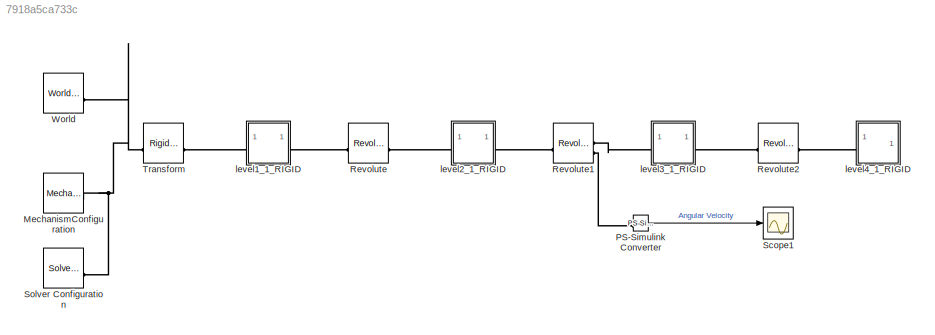
MODEL slx_7918a5ca733c
KIND model
CONFIG AbsTol = auto
CONFIG EnableMultiTasking = off
CONFIG FixedStep = auto
CONFIG MaxStep = 0.01
CONFIG MinStep = auto
CONFIG RelTol = 1e-3
CONFIG SampleTimeConstraint = Unconstrained
CONFIG SolverName = ode23t
CONFIG StartTime = 0.0
CONFIG StopTime = 3
WORKSPACE source: external: MATLAB File  (data not in archive)
BLOCK [Reference] MechanismConfiguration  REF=sm_lib/Utilities/Mechanism
Configuration
  SourceBlock = sm_lib/Utilities/Mechanism\nConfiguration
  SourceType = Mechanism\nConfiguration
BLOCK [Reference] PS-Simulink Converter  REF=nesl_utility/PS-Simulink
Converter
  SourceBlock = nesl_utility/PS-Simulink\nConverter
  SourceType = PS-Simulink\nConverter
BLOCK [Reference] Revolute  REF=sm_lib/Joints/Revolute Joint
  SourceBlock = sm_lib/Joints/Revolute Joint
  SourceType = Revolute Joint
BLOCK [Reference] Revolute1  REF=sm_lib/Joints/Revolute Joint
  SourceBlock = sm_lib/Joints/Revolute Joint
  SourceType = Revolute Joint
BLOCK [Reference] Revolute2  REF=sm_lib/Joints/Revolute Joint
  SourceBlock = sm_lib/Joints/Revolute Joint
  SourceType = Revolute Joint
BLOCK [Scope] Scope1
  Floating = off
  NumInputPorts = 1
  ScopeSpecificationString = Simulink.scopes.TimeScopeBlockCfg('CurrentConfiguration', extmgr.ConfigurationSet(extmgr.Configuration('Core','General UI',true,'FigureColor',[1 1 1]),extmgr.Configuration('Core','Source UI',true),extmgr.Configuration('Sources','WiredSimulink',true),extmgr.Configuration('Visuals','Time Domain',true,'SerializedDisplays',{struct('MinYLimReal','-37.30612','MaxYLimReal','37.26199','YLabelReal','Angula...<+1749ch>
BLOCK [Reference] Solver Configuration  REF=nesl_utility/Solver
Configuration
  SourceBlock = nesl_utility/Solver\nConfiguration
  SourceType = Solver\nConfiguration
BLOCK [Reference] Transform  REF=sm_lib/Frames and
Transforms/Rigid
Transform
  SourceBlock = sm_lib/Frames and\nTransforms/Rigid\nTransform
  SourceType = Rigid\nTransform
BLOCK [Reference] World  REF=sm_lib/Frames and
Transforms/World Frame
  SourceBlock = sm_lib/Frames and\nTransforms/World Frame
  SourceType = World Frame
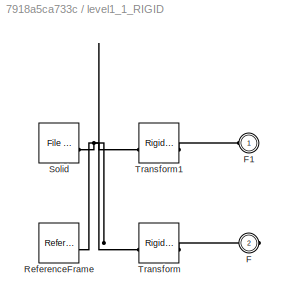
BLOCK [SubSystem] level1_1_RIGID
BLOCK [PMIOPort] level1_1_RIGID/F
  Port = 2
  Side = Right
BLOCK [PMIOPort] level1_1_RIGID/F1
  Side = Left
BLOCK [Reference] level1_1_RIGID/ReferenceFrame  REF=sm_lib/Frames and
Transforms/Reference
Frame
  SourceBlock = sm_lib/Frames and\nTransforms/Reference\nFrame
  SourceType = Reference\nFrame
BLOCK [Reference] level1_1_RIGID/Solid  REF=sm_lib/Body Elements/File Solid
  SourceBlock = sm_lib/Body Elements/File Solid
  SourceType = File Solid
BLOCK [Reference] level1_1_RIGID/Transform  REF=sm_lib/Frames and
Transforms/Rigid
Transform
  SourceBlock = sm_lib/Frames and\nTransforms/Rigid\nTransform
  SourceType = Rigid\nTransform
BLOCK [Reference] level1_1_RIGID/Transform1  REF=sm_lib/Frames and
Transforms/Rigid
Transform
  SourceBlock = sm_lib/Frames and\nTransforms/Rigid\nTransform
  SourceType = Rigid\nTransform
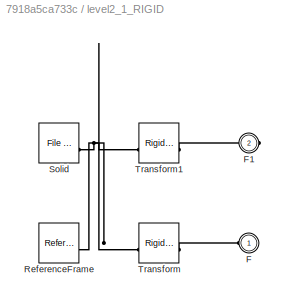
BLOCK [SubSystem] level2_1_RIGID
BLOCK [PMIOPort] level2_1_RIGID/F
  Side = Left
BLOCK [PMIOPort] level2_1_RIGID/F1
  Port = 2
  Side = Right
BLOCK [Reference] level2_1_RIGID/ReferenceFrame  REF=sm_lib/Frames and
Transforms/Reference
Frame
  SourceBlock = sm_lib/Frames and\nTransforms/Reference\nFrame
  SourceType = Reference\nFrame
BLOCK [Reference] level2_1_RIGID/Solid  REF=sm_lib/Body Elements/File Solid
  SourceBlock = sm_lib/Body Elements/File Solid
  SourceType = File Solid
BLOCK [Reference] level2_1_RIGID/Transform  REF=sm_lib/Frames and
Transforms/Rigid
Transform
  SourceBlock = sm_lib/Frames and\nTransforms/Rigid\nTransform
  SourceType = Rigid\nTransform
BLOCK [Reference] level2_1_RIGID/Transform1  REF=sm_lib/Frames and
Transforms/Rigid
Transform
  SourceBlock = sm_lib/Frames and\nTransforms/Rigid\nTransform
  SourceType = Rigid\nTransform
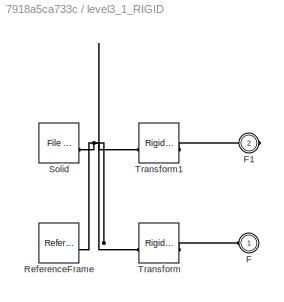
BLOCK [SubSystem] level3_1_RIGID
BLOCK [PMIOPort] level3_1_RIGID/F
  Side = Left
BLOCK [PMIOPort] level3_1_RIGID/F1
  Port = 2
  Side = Right
BLOCK [Reference] level3_1_RIGID/ReferenceFrame  REF=sm_lib/Frames and
Transforms/Reference
Frame
  SourceBlock = sm_lib/Frames and\nTransforms/Reference\nFrame
  SourceType = Reference\nFrame
BLOCK [Reference] level3_1_RIGID/Solid  REF=sm_lib/Body Elements/File Solid
  SourceBlock = sm_lib/Body Elements/File Solid
  SourceType = File Solid
BLOCK [Reference] level3_1_RIGID/Transform  REF=sm_lib/Frames and
Transforms/Rigid
Transform
  SourceBlock = sm_lib/Frames and\nTransforms/Rigid\nTransform
  SourceType = Rigid\nTransform
BLOCK [Reference] level3_1_RIGID/Transform1  REF=sm_lib/Frames and
Transforms/Rigid
Transform
  SourceBlock = sm_lib/Frames and\nTransforms/Rigid\nTransform
  SourceType = Rigid\nTransform
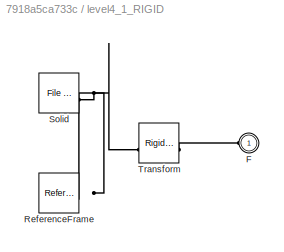
BLOCK [SubSystem] level4_1_RIGID
BLOCK [PMIOPort] level4_1_RIGID/F
  Side = Left
BLOCK [Reference] level4_1_RIGID/ReferenceFrame  REF=sm_lib/Frames and
Transforms/Reference
Frame
  SourceBlock = sm_lib/Frames and\nTransforms/Reference\nFrame
  SourceType = Reference\nFrame
BLOCK [Reference] level4_1_RIGID/Solid  REF=sm_lib/Body Elements/File Solid
  SourceBlock = sm_lib/Body Elements/File Solid
  SourceType = File Solid
BLOCK [Reference] level4_1_RIGID/Transform  REF=sm_lib/Frames and
Transforms/Rigid
Transform
  SourceBlock = sm_lib/Frames and\nTransforms/Rigid\nTransform
  SourceType = Rigid\nTransform
LINE PS-Simulink Converter:1 -> Scope1:1
PNET net1: MechanismConfiguration:RConn1 -- Solver Configuration:RConn1 -- Transform:LConn1 -- World:RConn1
PLINE PS-Simulink Converter:LConn1 -- Revolute1:RConn2
PLINE Revolute1:LConn1 -- level2_1_RIGID:RConn1
PLINE Revolute1:RConn1 -- level3_1_RIGID:LConn1
PLINE Revolute2:LConn1 -- level3_1_RIGID:RConn1
PLINE Revolute2:RConn1 -- level4_1_RIGID:LConn1
PLINE Revolute:LConn1 -- level1_1_RIGID:RConn1
PLINE Revolute:RConn1 -- level2_1_RIGID:LConn1
PLINE Transform:RConn1 -- level1_1_RIGID:LConn1
PLINE level1_1_RIGID/F1:RConn1 -- level1_1_RIGID/Transform1:RConn1
PLINE level1_1_RIGID/F:RConn1 -- level1_1_RIGID/Transform:RConn1
PNET net2: level1_1_RIGID/ReferenceFrame:RConn1 -- level1_1_RIGID/Solid:RConn1 -- level1_1_RIGID/Transform1:LConn1 -- level1_1_RIGID/Transform:LConn1
PLINE level2_1_RIGID/F1:RConn1 -- level2_1_RIGID/Transform1:RConn1
PLINE level2_1_RIGID/F:RConn1 -- level2_1_RIGID/Transform:RConn1
PNET net3: level2_1_RIGID/ReferenceFrame:RConn1 -- level2_1_RIGID/Solid:RConn1 -- level2_1_RIGID/Transform1:LConn1 -- level2_1_RIGID/Transform:LConn1
PLINE level3_1_RIGID/F1:RConn1 -- level3_1_RIGID/Transform1:RConn1
PLINE level3_1_RIGID/F:RConn1 -- level3_1_RIGID/Transform:RConn1
PNET net4: level3_1_RIGID/ReferenceFrame:RConn1 -- level3_1_RIGID/Solid:RConn1 -- level3_1_RIGID/Transform1:LConn1 -- level3_1_RIGID/Transform:LConn1
PLINE level4_1_RIGID/F:RConn1 -- level4_1_RIGID/Transform:RConn1
PNET net5: level4_1_RIGID/ReferenceFrame:RConn1 -- level4_1_RIGID/Solid:RConn1 -- level4_1_RIGID/Transform:LConn1
note: PNET lines group multi-terminal physical nets as a canonical sorted terminal list (undirected conserving connections); 2-terminal nets keep the pairwise PLINE form
